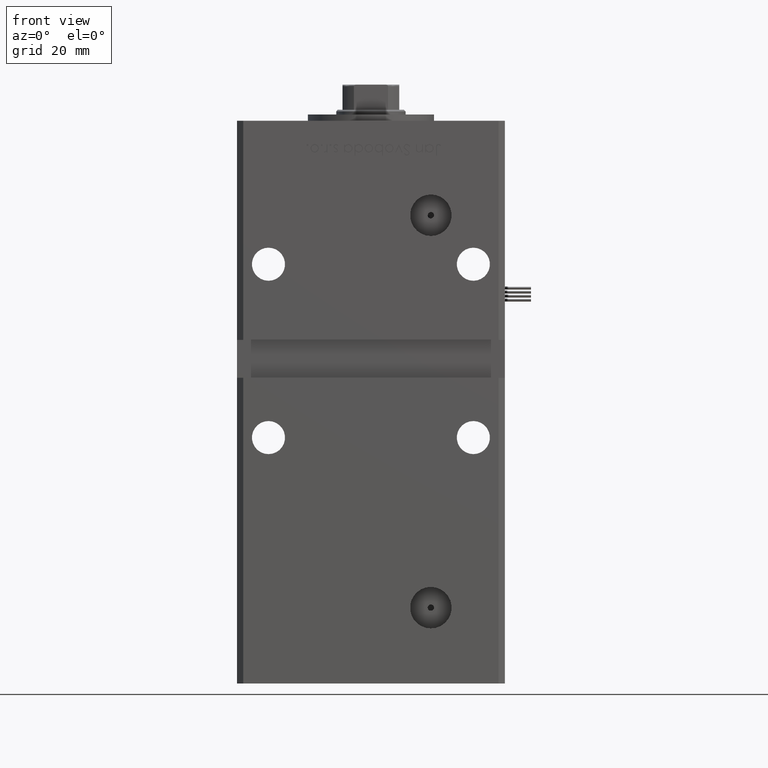
[diagram: clean part render]
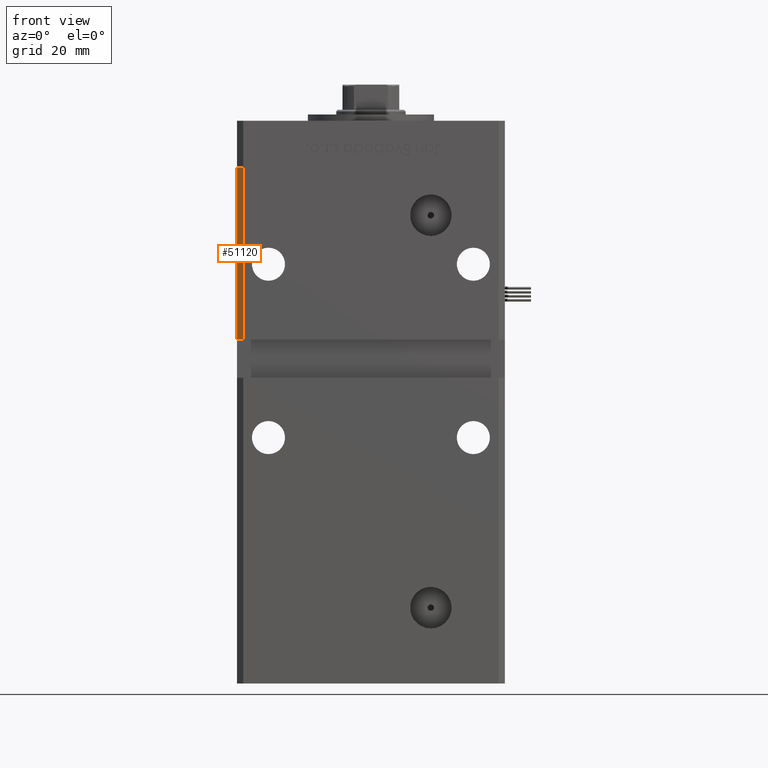
[diagram: same view with one face highlighted and labeled with its STEP entity id]
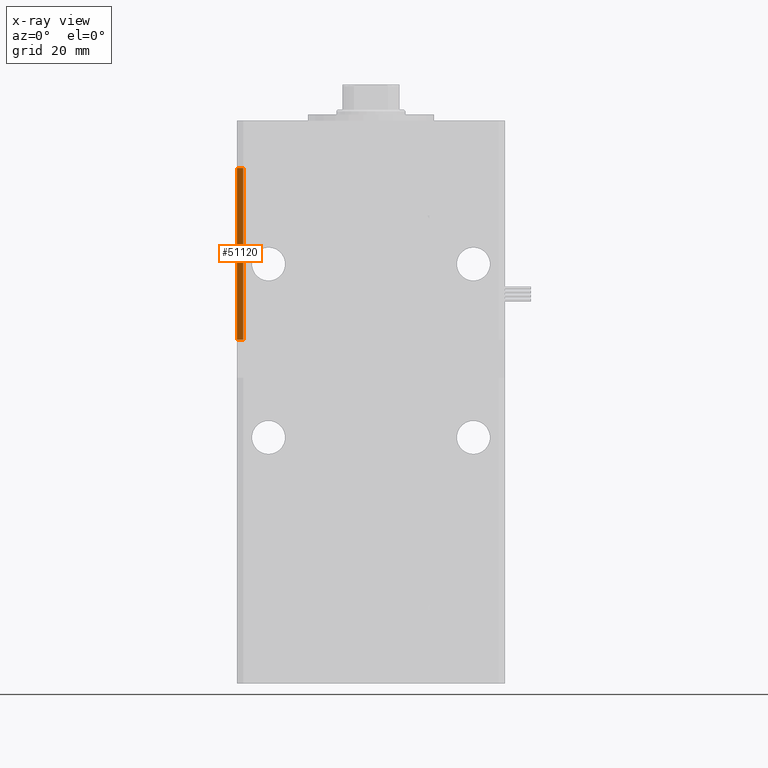
[diagram: x-ray of the same camera — body ghosted, the highlighted face saturated]
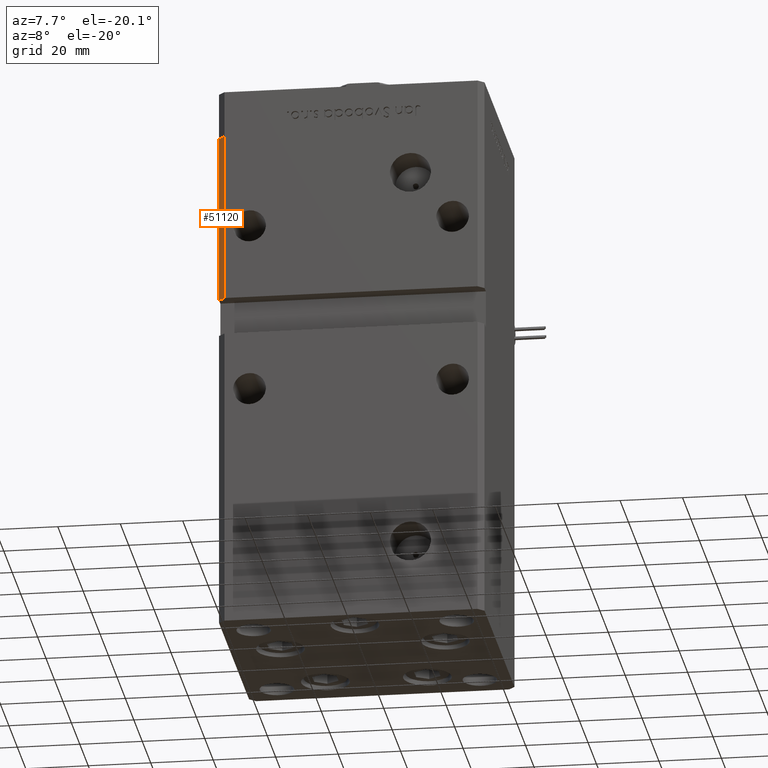
[diagram: same view with one face highlighted and labeled with its STEP entity id]
A machine part, front view. The second image highlights one B-rep face of the part: STEP entity #51120.
The next image is the same camera in x-ray: the body ghosted, the highlighted face saturated — about 0% of this face is hidden behind the body in this view.
A second angle (auxiliary view) of the same face is appended — the face is thin or edge-on in the first view.
In plain terms, the highlighted planar face has unit normal (0.7071, 0.7071, 0).
Its self-contained STEP definition (entity closure, byte-faithful):
#586 = VECTOR ( 'NONE', #56142, 1000.000000000000114 ) ;
#3284 = CARTESIAN_POINT ( 'NONE',  ( -40.49999999999998579, -37.50000000000000711, 148.5000000000000000 ) ) ;
#7993 = CARTESIAN_POINT ( 'NONE',  ( -42.49999999999998579, -35.50000000000000711, 148.5000000000000000 ) ) ;
#11598 = CARTESIAN_POINT ( 'NONE',  ( -40.49999999999998579, -37.50000000000000711, 148.5000000000000000 ) ) ;
#13801 = CARTESIAN_POINT ( 'NONE',  ( -42.49999999999998579, -35.50000000000000711, 148.5000000000000000 ) ) ;
#17065 = PLANE ( 'NONE',  #32434 ) ;
#20879 = LINE ( 'NONE', #3284, #25294 ) ;
#21195 = LINE ( 'NONE', #13801, #586 ) ;
#22251 = VECTOR ( 'NONE', #24323, 1000.000000000000000 ) ;
#24323 = DIRECTION ( 'NONE',  ( -0.000000000000000000, -0.000000000000000000, -1.000000000000000000 ) ) ;
#25049 = EDGE_CURVE ( 'NONE', #29222, #54652, #34123, .T. ) ;
#25294 = VECTOR ( 'NONE', #29964, 1000.000000000000000 ) ;
#25859 = DIRECTION ( 'NONE',  ( 0.7071067811865475727, 0.7071067811865475727, -0.000000000000000000 ) ) ;
#29222 = VERTEX_POINT ( 'NONE', #44438 ) ;
#29964 = DIRECTION ( 'NONE',  ( -0.000000000000000000, -0.000000000000000000, -1.000000000000000000 ) ) ;
#31824 = EDGE_LOOP ( 'NONE', ( #35088, #40906, #49207, #37442 ) ) ;
#32434 = AXIS2_PLACEMENT_3D ( 'NONE', #7993, #25859, #34110 ) ;
#32849 = CARTESIAN_POINT ( 'NONE',  ( -42.49999999999998579, -35.50000000000000711, 148.5000000000000000 ) ) ;
#33840 = VERTEX_POINT ( 'NONE', #11598 ) ;
#34110 = DIRECTION ( 'NONE',  ( -0.7071067811865474617, 0.7071067811865474617, 0.000000000000000000 ) ) ;
#34123 = LINE ( 'NONE', #39496, #44465 ) ;
#35088 = ORIENTED_EDGE ( 'NONE', *, *, #43400, .T. ) ;
#37442 = ORIENTED_EDGE ( 'NONE', *, *, #47258, .F. ) ;
#38659 = DIRECTION ( 'NONE',  ( 0.7071067811865474617, -0.7071067811865474617, 0.000000000000000000 ) ) ;
#39496 = CARTESIAN_POINT ( 'NONE',  ( -42.49999999999998579, -35.50000000000000711, 94.00000000000000000 ) ) ;
#40906 = ORIENTED_EDGE ( 'NONE', *, *, #25049, .T. ) ;
#43400 = EDGE_CURVE ( 'NONE', #45474, #29222, #54448, .T. ) ;
#44438 = CARTESIAN_POINT ( 'NONE',  ( -42.49999999999998579, -35.50000000000001421, 94.00000000000000000 ) ) ;
#44465 = VECTOR ( 'NONE', #38659, 1000.000000000000114 ) ;
#45474 = VERTEX_POINT ( 'NONE', #54757 ) ;
#47258 = EDGE_CURVE ( 'NONE', #45474, #33840, #21195, .T. ) ;
#47738 = FACE_OUTER_BOUND ( 'NONE', #31824, .T. ) ;
#48619 = CARTESIAN_POINT ( 'NONE',  ( -40.49999999999998579, -37.50000000000000711, 94.00000000000000000 ) ) ;
#49207 = ORIENTED_EDGE ( 'NONE', *, *, #54207, .F. ) ;
#51120 = ADVANCED_FACE ( 'NONE', ( #47738 ), #17065, .F. ) ;
#54207 = EDGE_CURVE ( 'NONE', #33840, #54652, #20879, .T. ) ;
#54448 = LINE ( 'NONE', #32849, #22251 ) ;
#54652 = VERTEX_POINT ( 'NONE', #48619 ) ;
#54757 = CARTESIAN_POINT ( 'NONE',  ( -42.49999999999998579, -35.50000000000000711, 148.5000000000000000 ) ) ;
#56142 = DIRECTION ( 'NONE',  ( 0.7071067811865474617, -0.7071067811865474617, 0.000000000000000000 ) ) ;